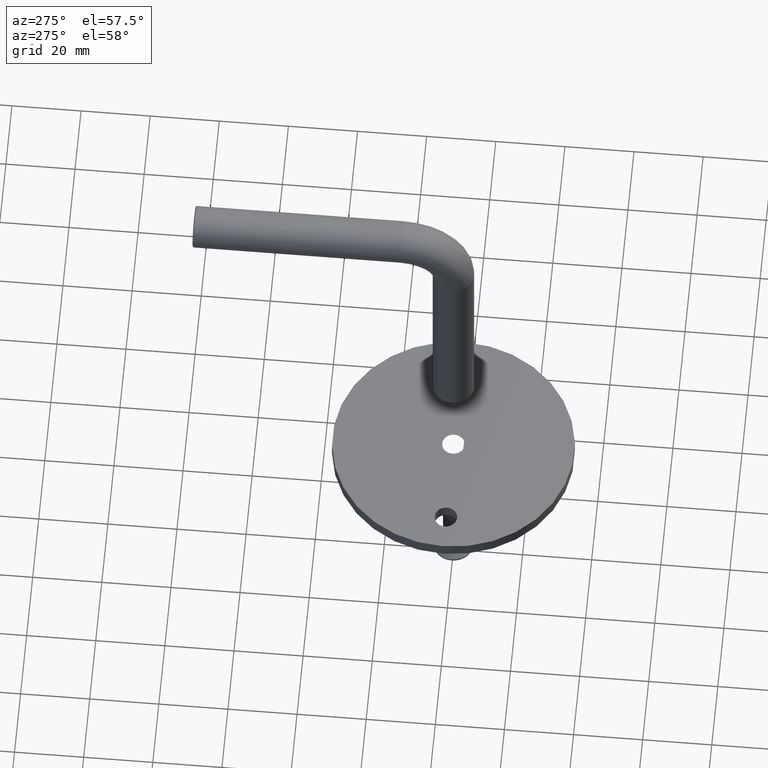
[diagram: clean part render]
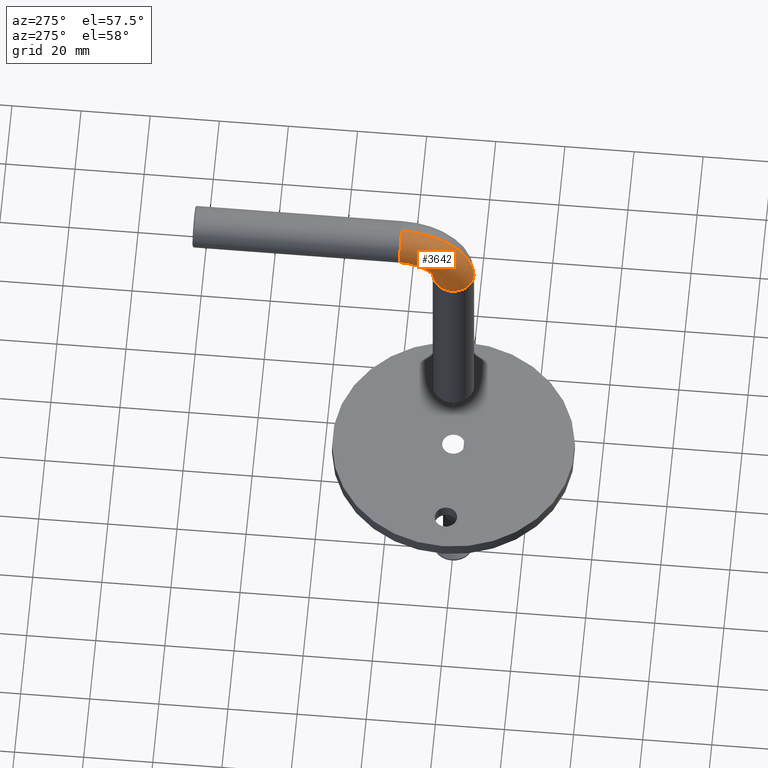
[diagram: same view with one face highlighted and labeled with its STEP entity id]
A machine part, auxiliary view. The second image highlights one B-rep face of the part: STEP entity #3642.
In plain terms, the highlighted toroidal blend (fillet) surface has major radius 15 mm and minor (blend) radius 6 mm.
Its self-contained STEP definition (entity closure, byte-faithful):
#418 = CARTESIAN_POINT ( 'NONE',  ( 0.000000000000000000, -6.938893903907228378E-15, 60.00000000000000000 ) ) ;
#686 = CARTESIAN_POINT ( 'NONE',  ( 0.000000000000000000, 5.999999999999993783, 60.00000000000000000 ) ) ;
#826 = CARTESIAN_POINT ( 'NONE',  ( 0.000000000000000000, 14.99999999999999289, 81.00000000000000000 ) ) ;
#1863 = CARTESIAN_POINT ( 'NONE',  ( 7.347880794884124666E-16, -6.000000000000008882, 60.00000000000000000 ) ) ;
#2323 = EDGE_CURVE ( 'NONE', #7381, #17397, #14141, .T. ) ;
#2327 = VERTEX_POINT ( 'NONE', #686 ) ;
#3062 = EDGE_CURVE ( 'NONE', #2327, #7381, #12248, .T. ) ;
#3622 = CARTESIAN_POINT ( 'NONE',  ( 0.000000000000000000, 14.99999999999999289, 60.00000000000000000 ) ) ;
#3642 = ADVANCED_FACE ( 'NONE', ( #10334 ), #6064, .T. ) ;
#5271 = ORIENTED_EDGE ( 'NONE', *, *, #3062, .T. ) ;
#5715 = AXIS2_PLACEMENT_3D ( 'NONE', #17020, #11459, #7583 ) ;
#5877 = EDGE_CURVE ( 'NONE', #2327, #15188, #12430, .T. ) ;
#5880 = DIRECTION ( 'NONE',  ( 1.000000000000000000, 0.000000000000000000, 0.000000000000000000 ) ) ;
#6064 = TOROIDAL_SURFACE ( 'NONE', #12460, 15.00000000000000000, 6.000000000000000888 ) ;
#6740 = ORIENTED_EDGE ( 'NONE', *, *, #2323, .T. ) ;
#7279 = DIRECTION ( 'NONE',  ( 0.000000000000000000, 0.000000000000000000, 1.000000000000000000 ) ) ;
#7381 = VERTEX_POINT ( 'NONE', #1863 ) ;
#7510 = DIRECTION ( 'NONE',  ( 0.000000000000000000, 0.000000000000000000, 1.000000000000000000 ) ) ;
#7583 = DIRECTION ( 'NONE',  ( 0.000000000000000000, 0.000000000000000000, 1.000000000000000000 ) ) ;
#7712 = CARTESIAN_POINT ( 'NONE',  ( 0.000000000000000000, 14.99999999999999289, 60.00000000000000000 ) ) ;
#8560 = AXIS2_PLACEMENT_3D ( 'NONE', #3622, #15691, #7510 ) ;
#8801 = EDGE_LOOP ( 'NONE', ( #5271, #6740, #9970, #17426 ) ) ;
#9029 = DIRECTION ( 'NONE',  ( -1.000000000000000000, -0.000000000000000000, 0.000000000000000000 ) ) ;
#9970 = ORIENTED_EDGE ( 'NONE', *, *, #11923, .F. ) ;
#10070 = AXIS2_PLACEMENT_3D ( 'NONE', #418, #7279, #5880 ) ;
#10334 = FACE_OUTER_BOUND ( 'NONE', #8801, .T. ) ;
#10623 = CARTESIAN_POINT ( 'NONE',  ( 0.000000000000000000, 14.99999999999999289, 75.00000000000000000 ) ) ;
#11459 = DIRECTION ( 'NONE',  ( -1.000000000000000000, -0.000000000000000000, 0.000000000000000000 ) ) ;
#11923 = EDGE_CURVE ( 'NONE', #15188, #17397, #13781, .T. ) ;
#12035 = DIRECTION ( 'NONE',  ( 1.000000000000000000, 0.000000000000000000, 0.000000000000000000 ) ) ;
#12248 = CIRCLE ( 'NONE', #10070, 6.000000000000000888 ) ;
#12295 = AXIS2_PLACEMENT_3D ( 'NONE', #10623, #17235, #12035 ) ;
#12430 = CIRCLE ( 'NONE', #5715, 8.999999999999994671 ) ;
#12460 = AXIS2_PLACEMENT_3D ( 'NONE', #7712, #9029, #15714 ) ;
#13781 = CIRCLE ( 'NONE', #12295, 6.000000000000000888 ) ;
#14141 = CIRCLE ( 'NONE', #8560, 21.00000000000000355 ) ;
#14800 = CARTESIAN_POINT ( 'NONE',  ( 7.347880794884113820E-16, 14.99999999999999289, 68.99999999999998579 ) ) ;
#15188 = VERTEX_POINT ( 'NONE', #14800 ) ;
#15691 = DIRECTION ( 'NONE',  ( -1.000000000000000000, -0.000000000000000000, 0.000000000000000000 ) ) ;
#15714 = DIRECTION ( 'NONE',  ( 0.000000000000000000, 0.000000000000000000, 1.000000000000000000 ) ) ;
#17020 = CARTESIAN_POINT ( 'NONE',  ( 7.347880794884120722E-16, 14.99999999999999289, 60.00000000000000000 ) ) ;
#17235 = DIRECTION ( 'NONE',  ( 0.000000000000000000, 1.000000000000000000, 6.123233995736766036E-17 ) ) ;
#17397 = VERTEX_POINT ( 'NONE', #826 ) ;
#17426 = ORIENTED_EDGE ( 'NONE', *, *, #5877, .F. ) ;